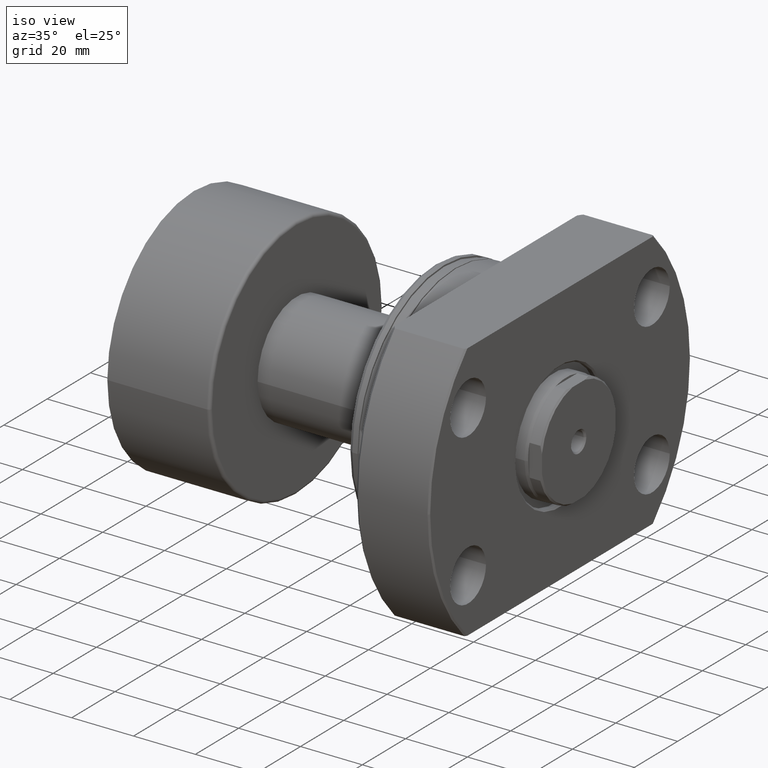
[diagram: clean part render]
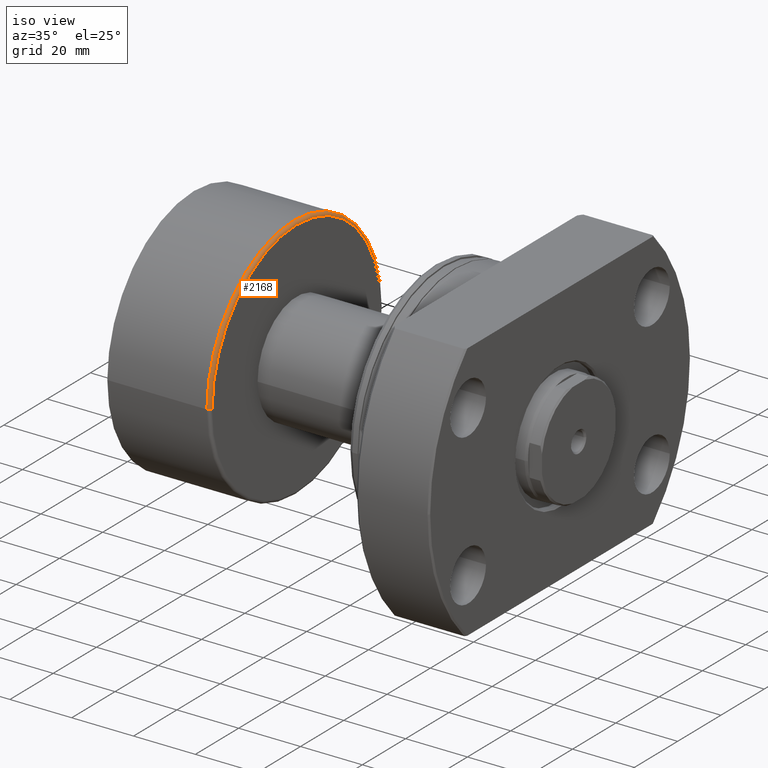
[diagram: same view with one face highlighted and labeled with its STEP entity id]
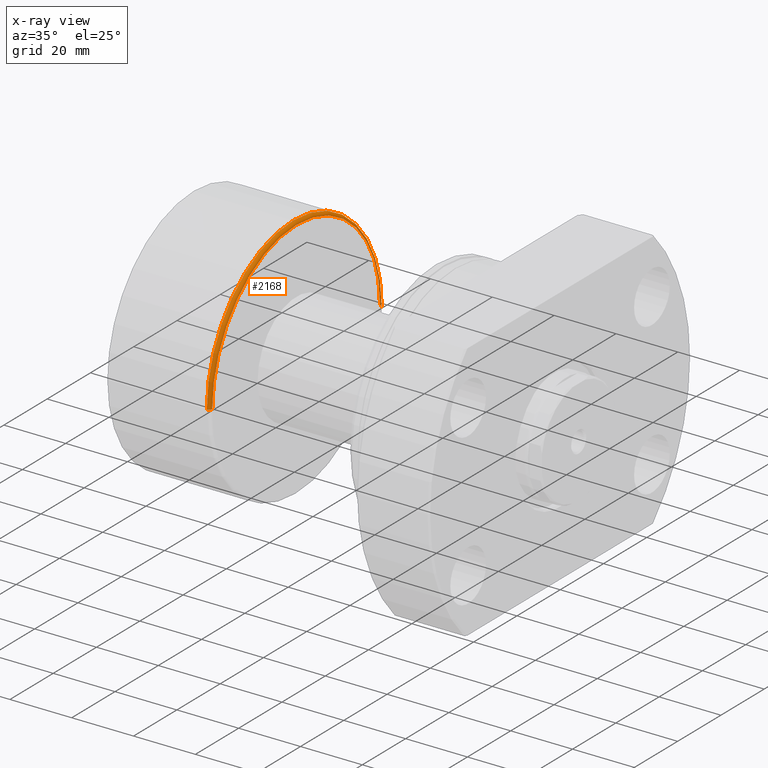
[diagram: x-ray of the same camera — body ghosted, the highlighted face saturated]
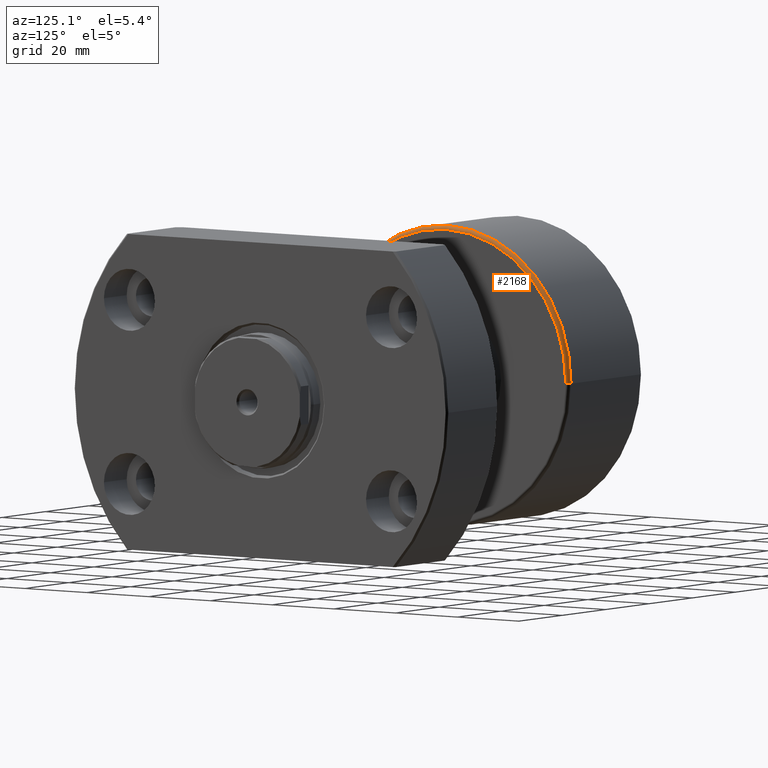
[diagram: same view with one face highlighted and labeled with its STEP entity id]
A machine part, iso view. The second image highlights one B-rep face of the part: STEP entity #2168.
The next image is the same camera in x-ray: the body ghosted, the highlighted face saturated — about 0% of this face is hidden behind the body in this view.
A second angle (auxiliary view) of the same face is appended — the face is thin or edge-on in the first view.
In plain terms, the highlighted toroidal blend (fillet) surface has major radius 39 mm and minor (blend) radius 1 mm.
Its self-contained STEP definition (entity closure, byte-faithful):
#91 = CARTESIAN_POINT ( 'NONE',  ( 33.70000000000000284, -39.99999999999999289, 0.000000000000000000 ) ) ;
#157 = DIRECTION ( 'NONE',  ( 1.069542322069065801E-17, -1.000000000000000000, 0.000000000000000000 ) ) ;
#221 = EDGE_CURVE ( 'NONE', #1168, #252, #2196, .T. ) ;
#245 = VERTEX_POINT ( 'NONE', #880 ) ;
#252 = VERTEX_POINT ( 'NONE', #378 ) ;
#375 = CARTESIAN_POINT ( 'NONE',  ( 33.70000000000000284, 0.000000000000000000, 0.000000000000000000 ) ) ;
#378 = CARTESIAN_POINT ( 'NONE',  ( 34.70000000000000284, 38.99999999999999289, 4.837354856632044663E-15 ) ) ;
#471 = CARTESIAN_POINT ( 'NONE',  ( 33.70000000000000284, -38.99999999999999289, 0.000000000000000000 ) ) ;
#500 = EDGE_CURVE ( 'NONE', #1168, #1288, #2613, .T. ) ;
#621 = DIRECTION ( 'NONE',  ( 0.000000000000000000, -1.000000000000000000, 0.000000000000000000 ) ) ;
#880 = CARTESIAN_POINT ( 'NONE',  ( 33.70000000000000284, 39.99999999999999289, 4.898587196589412237E-15 ) ) ;
#895 = DIRECTION ( 'NONE',  ( -1.000000000000000000, -1.069542322069065801E-17, -0.000000000000000000 ) ) ;
#908 = CIRCLE ( 'NONE', #2683, 39.99999999999999289 ) ;
#1009 = DIRECTION ( 'NONE',  ( 1.309811581274509052E-33, -1.224646799147353207E-16, 1.000000000000000000 ) ) ;
#1066 = TOROIDAL_SURFACE ( 'NONE', #2568, 38.99999999999999289, 1.000000000000000888 ) ;
#1168 = VERTEX_POINT ( 'NONE', #2601 ) ;
#1270 = EDGE_LOOP ( 'NONE', ( #1984, #1343, #1929, #2308 ) ) ;
#1288 = VERTEX_POINT ( 'NONE', #91 ) ;
#1343 = ORIENTED_EDGE ( 'NONE', *, *, #2022, .T. ) ;
#1358 = AXIS2_PLACEMENT_3D ( 'NONE', #2893, #895, #2870 ) ;
#1482 = DIRECTION ( 'NONE',  ( -1.000000000000000000, 0.000000000000000000, 0.000000000000000000 ) ) ;
#1529 = CIRCLE ( 'NONE', #2784, 1.000000000000000888 ) ;
#1778 = EDGE_CURVE ( 'NONE', #1288, #245, #908, .T. ) ;
#1882 = CARTESIAN_POINT ( 'NONE',  ( 33.70000000000000284, 3.604357625372751759E-16, 0.000000000000000000 ) ) ;
#1929 = ORIENTED_EDGE ( 'NONE', *, *, #1778, .F. ) ;
#1984 = ORIENTED_EDGE ( 'NONE', *, *, #221, .T. ) ;
#2022 = EDGE_CURVE ( 'NONE', #252, #245, #1529, .T. ) ;
#2062 = CARTESIAN_POINT ( 'NONE',  ( 33.70000000000000284, 38.99999999999999289, 4.776122516674677089E-15 ) ) ;
#2168 = ADVANCED_FACE ( 'NONE', ( #2889 ), #1066, .T. ) ;
#2188 = DIRECTION ( 'NONE',  ( 0.000000000000000000, 0.000000000000000000, -1.000000000000000000 ) ) ;
#2196 = CIRCLE ( 'NONE', #1358, 38.99999999999999289 ) ;
#2308 = ORIENTED_EDGE ( 'NONE', *, *, #500, .F. ) ;
#2508 = AXIS2_PLACEMENT_3D ( 'NONE', #471, #2188, #1482 ) ;
#2568 = AXIS2_PLACEMENT_3D ( 'NONE', #375, #2591, #157 ) ;
#2591 = DIRECTION ( 'NONE',  ( -1.000000000000000000, -1.069542322069065801E-17, -0.000000000000000000 ) ) ;
#2601 = CARTESIAN_POINT ( 'NONE',  ( 34.70000000000000284, -38.99999999999999289, 0.000000000000000000 ) ) ;
#2613 = CIRCLE ( 'NONE', #2508, 1.000000000000000888 ) ;
#2683 = AXIS2_PLACEMENT_3D ( 'NONE', #1882, #2858, #621 ) ;
#2784 = AXIS2_PLACEMENT_3D ( 'NONE', #2062, #1009, #3047 ) ;
#2858 = DIRECTION ( 'NONE',  ( -1.000000000000000000, -1.069542322069065801E-17, -0.000000000000000000 ) ) ;
#2870 = DIRECTION ( 'NONE',  ( 0.000000000000000000, -1.000000000000000000, 0.000000000000000000 ) ) ;
#2889 = FACE_OUTER_BOUND ( 'NONE', #1270, .T. ) ;
#2893 = CARTESIAN_POINT ( 'NONE',  ( 34.70000000000000284, 3.711311857579658694E-16, 0.000000000000000000 ) ) ;
#3047 = DIRECTION ( 'NONE',  ( 0.000000000000000000, -1.000000000000000000, -1.224646799147357151E-16 ) ) ;